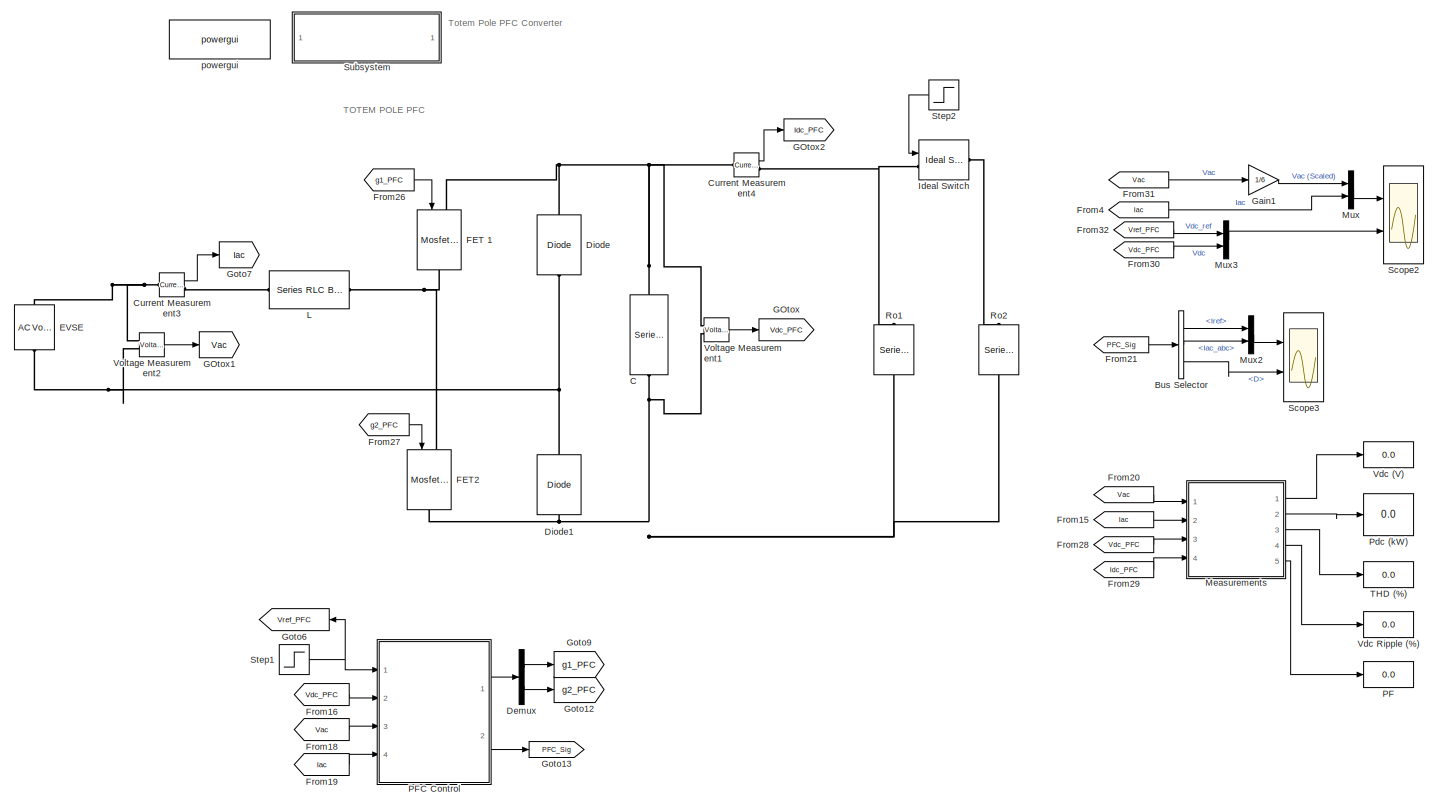
[diagram: root canvas - part 1/1, most of the canvas]
MODEL slx_6ab4b2e0a2a8
KIND model
CONFIG AbsTol = auto
CONFIG EnableMultiTasking = on
CONFIG FixedStep = Ts_Power
CONFIG MaxStep = 1e-7
CONFIG MinStep = auto
CONFIG PreLoadFcn = Totem_Pole_PFC_v1_data\n
CONFIG RelTol = 1e-4
CONFIG SampleTimeConstraint = Unconstrained
CONFIG SolverName = FixedStepDiscrete
CONFIG StartTime = 0.0
CONFIG StopTime = 0.6
BLOCK [BusSelector] Bus Selector
  OutputSignals = Iref,Iac_abc,D
  Ports = [1, 3]
BLOCK [Reference] C  REF=spsSeriesRLCBranchLib/Series RLC Branch
  NameLocation = left
  Ports = [0, 0, 0, 0, 0, 1, 1]
  SourceBlock = spsSeriesRLCBranchLib/Series RLC Branch
  SourceType = Series RLC Branch
BLOCK [Reference] Current Measurement3  REF=spsCurrentMeasurementLib/Current Measurement
  Ports = [0, 1, 0, 0, 0, 1, 1]
  SourceBlock = spsCurrentMeasurementLib/Current Measurement
  SourceType = Current Measurement
  UserDataPersistent = on
BLOCK [Reference] Current Measurement4  REF=spsCurrentMeasurementLib/Current Measurement
  Ports = [0, 1, 0, 0, 0, 1, 1]
  SourceBlock = spsCurrentMeasurementLib/Current Measurement
  SourceType = Current Measurement
  UserDataPersistent = on
BLOCK [Demux] Demux
  Outputs = 2
  Ports = [1, 2]
BLOCK [Reference] Diode  REF=spsDiodeLib/Diode
  NameLocation = right
  Ports = [0, 0, 0, 0, 0, 1, 1]
  SourceBlock = spsDiodeLib/Diode
  SourceType = Diode
BLOCK [Reference] Diode1  REF=spsDiodeLib/Diode
  NameLocation = right
  Ports = [0, 0, 0, 0, 0, 1, 1]
  SourceBlock = spsDiodeLib/Diode
  SourceType = Diode
BLOCK [Reference] EVSE  REF=spsACVoltageSourceLib/AC Voltage Source
  NameLocation = left
  Ports = [0, 0, 0, 0, 0, 1, 1]
  SourceBlock = spsACVoltageSourceLib/AC Voltage Source
  SourceType = AC Voltage Source
BLOCK [Reference] FET 1  REF=MyLibrary/Mosfet (custom)
  NameLocation = left
  Ports = [1, 0, 0, 0, 0, 1, 1]
  SourceBlock = MyLibrary/Mosfet (custom)
  SourceType = Custom FET
BLOCK [Reference] FET2  REF=MyLibrary/Mosfet (custom)
  NameLocation = left
  Ports = [1, 0, 0, 0, 0, 1, 1]
  SourceBlock = MyLibrary/Mosfet (custom)
  SourceType = Custom FET
BLOCK [From] From15
  GotoTag = Iac
BLOCK [From] From16
  GotoTag = Vdc_PFC
BLOCK [From] From18
  GotoTag = Vac
BLOCK [From] From19
  GotoTag = Iac
BLOCK [From] From20
  GotoTag = Vac
BLOCK [From] From21
  GotoTag = PFC_Sig
BLOCK [From] From26
  GotoTag = g1_PFC
BLOCK [From] From27
  GotoTag = g2_PFC
BLOCK [From] From28
  GotoTag = Vdc_PFC
BLOCK [From] From29
  GotoTag = Idc_PFC
BLOCK [From] From30
  GotoTag = Vdc_PFC
BLOCK [From] From31
  GotoTag = Vac
BLOCK [From] From32
  GotoTag = Vref_PFC
BLOCK [From] From4
  GotoTag = Iac
BLOCK [Goto] GOtox
  GotoTag = Vdc_PFC
BLOCK [Goto] GOtox1
  GotoTag = Vac
BLOCK [Goto] GOtox2
  GotoTag = Idc_PFC
BLOCK [Gain] Gain1
  Gain = 1/6
BLOCK [Goto] Goto12
  GotoTag = g2_PFC
BLOCK [Goto] Goto13
  GotoTag = PFC_Sig
BLOCK [Goto] Goto6
  GotoTag = Vref_PFC
BLOCK [Goto] Goto7
  GotoTag = Iac
BLOCK [Goto] Goto9
  GotoTag = g1_PFC
BLOCK [Reference] Ideal Switch  REF=spsIdealSwitchLib/Ideal Switch
  Ports = [1, 0, 0, 0, 0, 1, 1]
  SourceBlock = spsIdealSwitchLib/Ideal Switch
  SourceType = Ideal Switch
BLOCK [Reference] L  REF=spsSeriesRLCBranchLib/Series RLC Branch
  Ports = [0, 0, 0, 0, 0, 1, 1]
  SourceBlock = spsSeriesRLCBranchLib/Series RLC Branch
  SourceType = Series RLC Branch
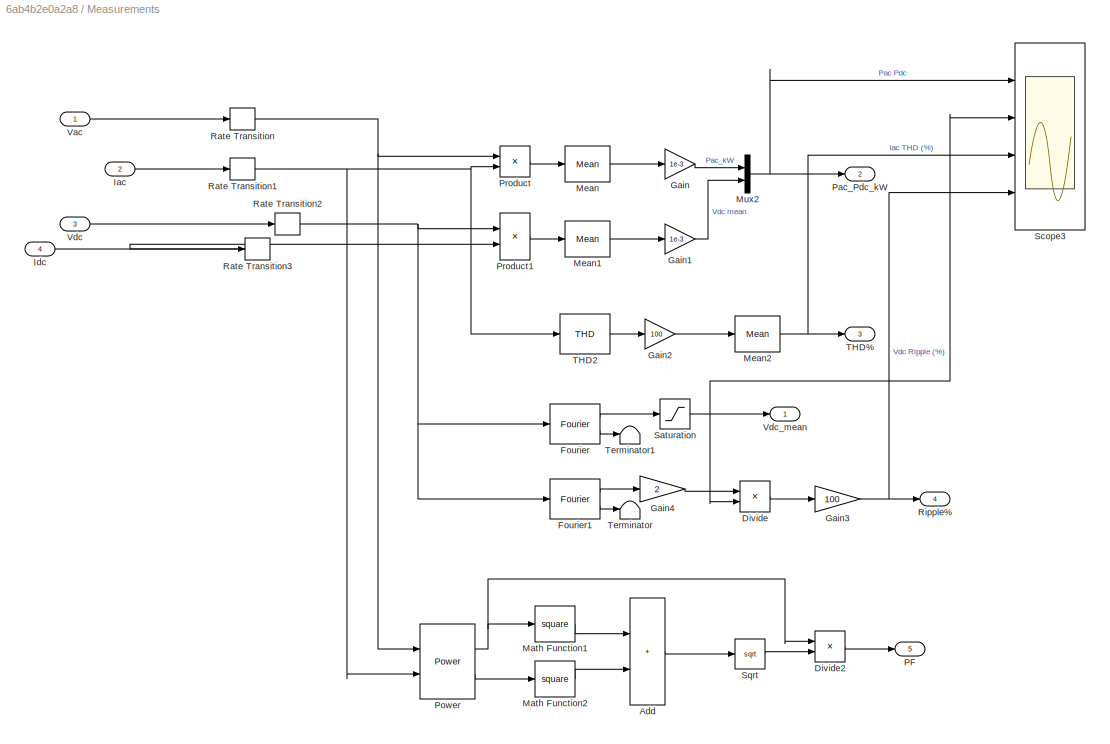
BLOCK [SubSystem] Measurements 
  Ports = [4, 5]
BLOCK [Sum] Measurements /Add
  IconShape = rectangular
  Ports = [2, 1]
BLOCK [Product] Measurements /Divide
  Inputs = */
  Ports = [2, 1]
BLOCK [Product] Measurements /Divide2
  Inputs = */
  Ports = [2, 1]
BLOCK [Reference] Measurements /Fourier  REF=spsFourierLib/Fourier
  Ports = [1, 2]
  SourceBlock = spsFourierLib/Fourier
  SourceType = Fourier
BLOCK [Reference] Measurements /Fourier1  REF=spsFourierLib/Fourier
  Ports = [1, 2]
  SourceBlock = spsFourierLib/Fourier
  SourceType = Fourier
BLOCK [Gain] Measurements /Gain
  Gain = 1e-3
BLOCK [Gain] Measurements /Gain1
  Gain = 1e-3
BLOCK [Gain] Measurements /Gain2
  Gain = 100
BLOCK [Gain] Measurements /Gain3
  Gain = 100
BLOCK [Gain] Measurements /Gain4
  Gain = 2
BLOCK [Inport] Measurements /Iac
  Port = 2
BLOCK [Inport] Measurements /Idc
  Port = 4
BLOCK [Math] Measurements /Math Function1
  Operator = square
  Ports = [1, 1]
BLOCK [Math] Measurements /Math Function2
  Operator = square
  Ports = [1, 1]
BLOCK [Reference] Measurements /Mean  REF=spsMeanLib/Mean
  Ports = [1, 1]
  SourceBlock = spsMeanLib/Mean
  SourceType = Mean
BLOCK [Reference] Measurements /Mean1  REF=spsMeanLib/Mean
  Ports = [1, 1]
  SourceBlock = spsMeanLib/Mean
  SourceType = Mean
BLOCK [Reference] Measurements /Mean2  REF=spsMeanLib/Mean
  Ports = [1, 1]
  SourceBlock = spsMeanLib/Mean
  SourceType = Mean
BLOCK [Mux] Measurements /Mux2
  DisplayOption = bar
  Inputs = 2
  Ports = [2, 1]
BLOCK [Outport] Measurements /PF
  Port = 5
BLOCK [Outport] Measurements /Pac_Pdc_kW
  Port = 2
BLOCK [Reference] Measurements /Power  REF=spsPowerLib/Power
  Ports = [2, 2]
  SourceBlock = spsPowerLib/Power
  SourceType = Power
BLOCK [Product] Measurements /Product
  Ports = [2, 1]
BLOCK [Product] Measurements /Product1
  Ports = [2, 1]
BLOCK [RateTransition] Measurements /Rate Transition
  OutPortSampleTime = Ts_Control
BLOCK [RateTransition] Measurements /Rate Transition1
  OutPortSampleTime = Ts_Control
BLOCK [RateTransition] Measurements /Rate Transition2
  OutPortSampleTime = Ts_Control
BLOCK [RateTransition] Measurements /Rate Transition3
  OutPortSampleTime = Ts_Control
BLOCK [Outport] Measurements /Ripple%
  Port = 4
BLOCK [Saturate] Measurements /Saturation
  LowerLimit = eps
  UpperLimit = inf
BLOCK [Scope] Measurements /Scope3
  Floating = off
  NumInputPorts = 4
  Ports = [4]
  ScopeSpecificationString = Simulink.scopes.TimeScopeBlockCfg('CurrentConfiguration', extmgr.ConfigurationSet(extmgr.Configuration('Core','General UI',true),extmgr.Configuration('Core','Source UI',true),extmgr.Configuration('Sources','WiredSimulink',true,'DataLoggingVariableName','ScopeData1'),extmgr.Configuration('Visuals','Time Domain',true,'SerializedDisplays',{struct('MinYLimReal','-1.32447','MaxYLimReal','11.92024','YLa...<+3480ch>
BLOCK [Sqrt] Measurements /Sqrt
BLOCK [Outport] Measurements /THD%
  Port = 3
BLOCK [Reference] Measurements /THD2  REF=spsTHDLib/THD
  Ports = [1, 1]
  SourceBlock = spsTHDLib/THD
  SourceType = THD
BLOCK [Terminator] Measurements /Terminator
BLOCK [Terminator] Measurements /Terminator1
BLOCK [Inport] Measurements /Vac
BLOCK [Inport] Measurements /Vdc
  Port = 3
BLOCK [Outport] Measurements /Vdc_mean
BLOCK [Mux] Mux
  DisplayOption = bar
  Inputs = 2
  Ports = [2, 1]
BLOCK [Mux] Mux2
  DisplayOption = bar
  Inputs = 2
  Ports = [2, 1]
BLOCK [Mux] Mux3
  DisplayOption = bar
  Inputs = 2
  Ports = [2, 1]
BLOCK [Display] PF
  Decimation = 100
  Format = bank
  Ports = [1]
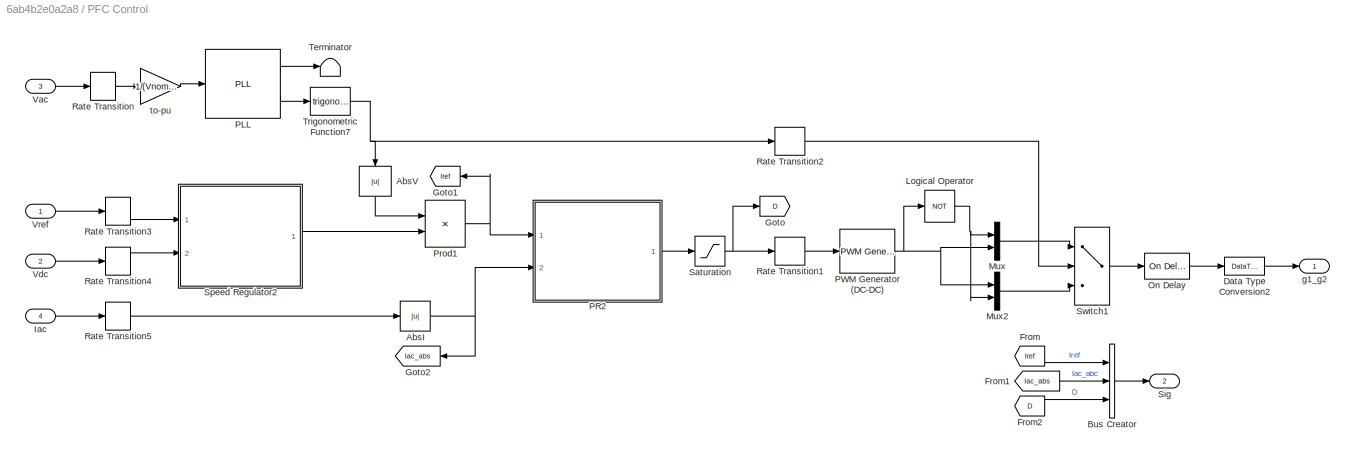
BLOCK [SubSystem] PFC Control
  Ports = [4, 2]
BLOCK [Abs] PFC Control/AbsI
  SaturateOnIntegerOverflow = off
BLOCK [Abs] PFC Control/AbsV
  NameLocation = right
  SaturateOnIntegerOverflow = off
BLOCK [BusCreator] PFC Control/Bus Creator
  DisplayOption = bar
  InheritFromInputs = on
  Inputs = 3
  Ports = [3, 1]
BLOCK [DataTypeConversion] PFC Control/Data Type Conversion2
  OutDataTypeStr = double
  RndMeth = Floor
  SaturateOnIntegerOverflow = off
BLOCK [From] PFC Control/From
  GotoTag = Iref
BLOCK [From] PFC Control/From1
  GotoTag = Iac_abs
BLOCK [From] PFC Control/From2
  GotoTag = D
BLOCK [Goto] PFC Control/Goto
  GotoTag = D
BLOCK [Goto] PFC Control/Goto1
  GotoTag = Iref
BLOCK [Goto] PFC Control/Goto2
  GotoTag = Iac_abs
BLOCK [Inport] PFC Control/Iac
  Port = 4
BLOCK [Logic] PFC Control/Logical Operator
  AllPortsSameDT = off
  Operator = NOT
  OutDataTypeStr = float('double')
  Ports = [1, 1]
BLOCK [Mux] PFC Control/Mux
  DisplayOption = bar
  Inputs = 2
  Ports = [2, 1]
BLOCK [Mux] PFC Control/Mux2
  DisplayOption = bar
  Inputs = 2
  Ports = [2, 1]
BLOCK [Reference] PFC Control/On Delay  REF=spsOnDelayLib/On Delay
  NameLocation = top
  Ports = [1, 1]
  SourceBlock = spsOnDelayLib/On Delay
  SourceType = On/Off Delay
BLOCK [Reference] PFC Control/PLL  REF=spsPLLLib/PLL
  Ports = [1, 2]
  SourceBlock = spsPLLLib/PLL
  SourceType = PLL
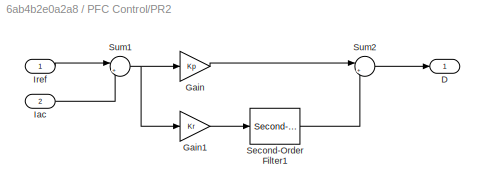
BLOCK [SubSystem] PFC Control/PR2
  Ports = [2, 1]
BLOCK [Outport] PFC Control/PR2/D
BLOCK [Gain] PFC Control/PR2/Gain
  Gain = Kp
BLOCK [Gain] PFC Control/PR2/Gain1
  Gain = Kr
BLOCK [Inport] PFC Control/PR2/Iac
  Port = 2
BLOCK [Inport] PFC Control/PR2/Iref
BLOCK [Reference] PFC Control/PR2/Second-Order Filter1  REF=spsSecondOrderFilterLib/Second-Order
Filter
  Ports = [1, 1]
  SourceBlock = spsSecondOrderFilterLib/Second-Order\nFilter
  SourceType = Second-Order Filter
BLOCK [Sum] PFC Control/PR2/Sum1
  Inputs = |+-
  Ports = [2, 1]
BLOCK [Sum] PFC Control/PR2/Sum2
  Inputs = |++
  Ports = [2, 1]
BLOCK [Reference] PFC Control/PWM Generator (DC-DC)  REF=spsPWMGeneratorDCDCLib/PWM Generator
(DC-DC)
  Ports = [1, 1]
  SourceBlock = spsPWMGeneratorDCDCLib/PWM Generator\n(DC-DC)
  SourceType = PWM Generator (DC-DC)
BLOCK [Product] PFC Control/Prod1
  Ports = [2, 1]
BLOCK [RateTransition] PFC Control/Rate Transition
  OutPortSampleTime = Ts_Control
BLOCK [RateTransition] PFC Control/Rate Transition1
  OutPortSampleTime = Ts_Power
BLOCK [RateTransition] PFC Control/Rate Transition2
  OutPortSampleTime = Ts_Power
BLOCK [RateTransition] PFC Control/Rate Transition3
  OutPortSampleTime = Ts_Control
BLOCK [RateTransition] PFC Control/Rate Transition4
  OutPortSampleTime = Ts_Control
BLOCK [RateTransition] PFC Control/Rate Transition5
  OutPortSampleTime = Ts_Control
BLOCK [Saturate] PFC Control/Saturation
  LowerLimit = 0
  UpperLimit = 1
BLOCK [Outport] PFC Control/Sig
  Port = 2
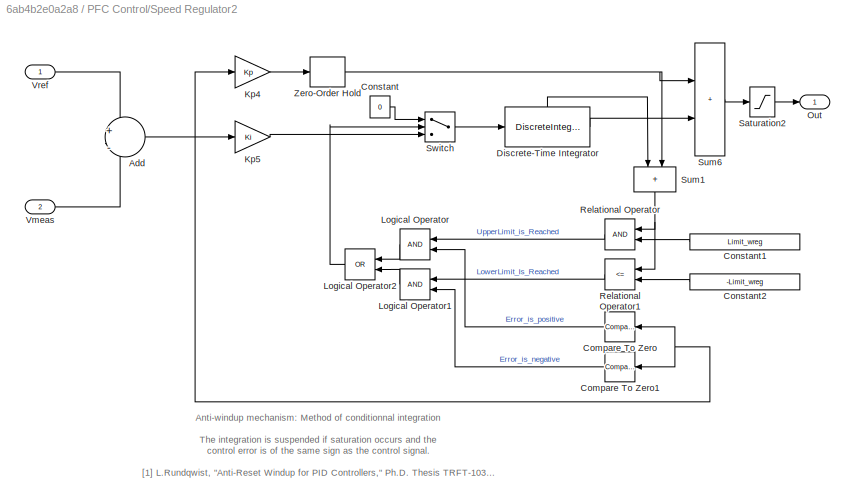
BLOCK [SubSystem] PFC Control/Speed Regulator2
  DialogController = POWERSYS.PowerSysDialog
  Ports = [2, 1]
BLOCK [Sum] PFC Control/Speed Regulator2/Add
  Inputs = +|-
  NameLocation = top
  Ports = [2, 1]
BLOCK [Reference] PFC Control/Speed Regulator2/Compare To Zero  REF=simulink/Logic and Bit
Operations/Compare
To Zero
  Ports = [1, 1]
  SourceBlock = simulink/Logic and Bit\nOperations/Compare\nTo Zero
  SourceType = Compare To Zero
BLOCK [Reference] PFC Control/Speed Regulator2/Compare To Zero1  REF=simulink/Logic and Bit
Operations/Compare
To Zero
  Ports = [1, 1]
  SourceBlock = simulink/Logic and Bit\nOperations/Compare\nTo Zero
  SourceType = Compare To Zero
BLOCK [Constant] PFC Control/Speed Regulator2/Constant
  Value = 0
BLOCK [Constant] PFC Control/Speed Regulator2/Constant1
  Value = Limit_wreg
BLOCK [Constant] PFC Control/Speed Regulator2/Constant2
  Value = -Limit_wreg
BLOCK [DiscreteIntegrator] PFC Control/Speed Regulator2/Discrete-Time Integrator
  ICPrevOutput = DiscIntNeverNeededParam
  ICPrevScaledInput = DiscIntNeverNeededParam
  InitialCondition = Init
  IntegratorMethod = Integration: Trapezoidal
  LimitOutput = on
  LowerSaturationLimit = -Limit_wreg
  Ports = [1, 1, 0, 0, 1]
  SampleTime = Ts
  ShowStatePort = on
  UpperSaturationLimit = Limit_wreg
BLOCK [Gain] PFC Control/Speed Regulator2/Kp4
  Gain = Kp
  OutDataTypeStr = Inherit: Same as input
  ParamDataTypeStr = Inherit: Same as input
  SampleTime = Ts
  SaturateOnIntegerOverflow = on
BLOCK [Gain] PFC Control/Speed Regulator2/Kp5
  Gain = Ki
  OutDataTypeStr = Inherit: Same as input
  ParamDataTypeStr = Inherit: Same as input
  SampleTime = Ts
  SaturateOnIntegerOverflow = on
BLOCK [Logic] PFC Control/Speed Regulator2/Logical Operator
  AllPortsSameDT = off
  OutDataTypeStr = boolean
  Ports = [2, 1]
BLOCK [Logic] PFC Control/Speed Regulator2/Logical Operator1
  AllPortsSameDT = off
  OutDataTypeStr = boolean
  Ports = [2, 1]
BLOCK [Logic] PFC Control/Speed Regulator2/Logical Operator2
  AllPortsSameDT = off
  Operator = OR
  OutDataTypeStr = boolean
  Ports = [2, 1]
BLOCK [Outport] PFC Control/Speed Regulator2/Out
  InitialOutput = 0
  SampleTime = Ts
  VectorParamsAs1DForOutWhenUnconnected = off
BLOCK [RelationalOperator] PFC Control/Speed Regulator2/Relational Operator
  InputSameDT = off
  OutDataTypeStr = boolean
  Ports = [2, 1]
BLOCK [RelationalOperator] PFC Control/Speed Regulator2/Relational Operator1
  InputSameDT = off
  Operator = <=
  OutDataTypeStr = boolean
  Ports = [2, 1]
BLOCK [Saturate] PFC Control/Speed Regulator2/Saturation2
  LowerLimit = -Limit_wreg
  NameLocation = top
  SampleTime = Ts
  UpperLimit = Limit_wreg
BLOCK [Sum] PFC Control/Speed Regulator2/Sum1
  IconShape = rectangular
  InputSameDT = on
  NameLocation = left
  OutDataTypeStr = Inherit: Same as first input
  Ports = [2, 1]
  SampleTime = Ts
  SaturateOnIntegerOverflow = on
BLOCK [Sum] PFC Control/Speed Regulator2/Sum6
  IconShape = rectangular
  InputSameDT = on
  OutDataTypeStr = Inherit: Same as first input
  Ports = [2, 1]
  SampleTime = Ts
  SaturateOnIntegerOverflow = on
BLOCK [Switch] PFC Control/Speed Regulator2/Switch
  Criteria = u2 > Threshold
  InputSameDT = off
  SaturateOnIntegerOverflow = off
BLOCK [Inport] PFC Control/Speed Regulator2/Vmeas
  Port = 2
  PortDimensions = 1
BLOCK [Inport] PFC Control/Speed Regulator2/Vref
  PortDimensions = 1
BLOCK [ZeroOrderHold] PFC Control/Speed Regulator2/Zero-Order Hold
  SampleTime = Ts
BLOCK [Switch] PFC Control/Switch1
  InputSameDT = off
  SaturateOnIntegerOverflow = off
BLOCK [Terminator] PFC Control/Terminator
BLOCK [Trigonometry] PFC Control/Trigonometric Function7
  NameLocation = top
  Ports = [1, 1]
BLOCK [Inport] PFC Control/Vac
  Port = 3
BLOCK [Inport] PFC Control/Vdc
  Port = 2
BLOCK [Inport] PFC Control/Vref
BLOCK [Outport] PFC Control/g1_g2
  PortDimensions = 2
BLOCK [Gain] PFC Control/to-pu
  Gain = 1/(Vnom_ac*sqrt(2))
BLOCK [Display] Pdc (kW) 
  Decimation = 100
  Format = bank
  Ports = [1]
BLOCK [Reference] Ro1  REF=spsSeriesRLCBranchLib/Series RLC Branch
  NameLocation = right
  Ports = [0, 0, 0, 0, 0, 1, 1]
  SourceBlock = spsSeriesRLCBranchLib/Series RLC Branch
  SourceType = Series RLC Branch
BLOCK [Reference] Ro2  REF=spsSeriesRLCBranchLib/Series RLC Branch
  NameLocation = right
  Ports = [0, 0, 0, 0, 0, 1, 1]
  SourceBlock = spsSeriesRLCBranchLib/Series RLC Branch
  SourceType = Series RLC Branch
BLOCK [Scope] Scope2
  Floating = off
  NumInputPorts = 2
  Ports = [2]
  ScopeSpecificationString = Simulink.scopes.TimeScopeBlockCfg('CurrentConfiguration', extmgr.ConfigurationSet(extmgr.Configuration('Core','General UI',true),extmgr.Configuration('Core','Source UI',true),extmgr.Configuration('Sources','WiredSimulink',true,'DataLoggingVariableName','ScopeData1'),extmgr.Configuration('Visuals','Time Domain',true,'SerializedDisplays',{struct('MinYLimReal','-70.71068','MaxYLimReal','70.71068','YL...<+2110ch>
BLOCK [Scope] Scope3
  Floating = off
  NumInputPorts = 2
  Ports = [2]
  ScopeSpecificationString = Simulink.scopes.TimeScopeBlockCfg('CurrentConfiguration', extmgr.ConfigurationSet(extmgr.Configuration('Core','General UI',true),extmgr.Configuration('Core','Source UI',true),extmgr.Configuration('Sources','WiredSimulink',true,'DataLoggingVariableName','ScopeData2'),extmgr.Configuration('Visuals','Time Domain',true,'SerializedDisplays',{struct('MinYLimReal','-9.06391','MaxYLimReal','81.57518','YLa...<+2057ch>
BLOCK [Step] Step1
  After = 400
  Before = 350
  SampleTime = Ts_Power
  Time = 0.2
BLOCK [Step] Step2
  SampleTime = Ts_Power
  Time = 0.4
BLOCK [SubSystem] Subsystem
  OpenFcn = edit('Totem_Pole_PFC_v1_data');
  Ports = []
BLOCK [Display] THD (%) 
  Decimation = 100
  Format = bank
  Ports = [1]
BLOCK [Display] Vdc (V) 
  Decimation = 100
  Format = bank
  Ports = [1]
BLOCK [Display] Vdc Ripple (%)
  Decimation = 100
  Format = bank
  Ports = [1]
BLOCK [Reference] Voltage Measurement1  REF=spsVoltageMeasurementLib/Voltage Measurement
  Ports = [0, 1, 0, 0, 0, 2]
  SourceBlock = spsVoltageMeasurementLib/Voltage Measurement
  SourceType = Voltage Measurement
  UserDataPersistent = on
BLOCK [Reference] Voltage Measurement2  REF=spsVoltageMeasurementLib/Voltage Measurement
  Ports = [0, 1, 0, 0, 0, 2]
  SourceBlock = spsVoltageMeasurementLib/Voltage Measurement
  SourceType = Voltage Measurement
  UserDataPersistent = on
BLOCK [Reference] powergui  REF=spspowerguiLib/powergui
  Ports = []
  Priority = 1
  SourceBlock = spspowerguiLib/powergui
  SourceType = PSB option menu block
ANNOTATION (root): TOTEM POLE PFC
ANNOTATION (root): Totem Pole PFC Converter
ANNOTATION PFC Control/Speed Regulator2: Anti-windup mechanism: Method of conditionnal integration The integration is suspended if saturation occurs and the control error is of the same sign as the control signal. [1] L.Rundqwist, "Anti-Reset Windup for PID Controllers," Ph.D. Thesis TRFT-1033, Departement of Automatic Control, Lund Institute of Technology, Lund, Sweeden, 1991.
LINE Bus Selector:1 -> Mux2:1
LINE Bus Selector:2 -> Mux2:2
LINE Bus Selector:3 -> Scope3:2
LINE Current Measurement3:1 -> Goto7:1
LINE Current Measurement4:1 -> GOtox2:1
LINE Demux:1 -> Goto9:1
LINE Demux:2 -> Goto12:1
LINE From15:1 -> Measurements :2
LINE From16:1 -> PFC Control:2
LINE From18:1 -> PFC Control:3
LINE From19:1 -> PFC Control:4
LINE From20:1 -> Measurements :1
LINE From21:1 -> Bus Selector:1
LINE From26:1 -> FET 1:1
LINE From27:1 -> FET2:1
LINE From28:1 -> Measurements :3
LINE From29:1 -> Measurements :4
LINE From30:1 -> Mux3:2
LINE From31:1 -> Gain1:1
LINE From32:1 -> Mux3:1
LINE From4:1 -> Mux:2
LINE Gain1:1 -> Mux:1
LINE Measurements /Add:1 -> Measurements /Sqrt:1
LINE Measurements /Divide2:1 -> Measurements /PF:1
LINE Measurements /Divide:1 -> Measurements /Gain3:1
LINE Measurements /Fourier1:1 -> Measurements /Gain4:1
LINE Measurements /Fourier1:2 -> Measurements /Terminator:1
LINE Measurements /Fourier:1 -> Measurements /Saturation:1
LINE Measurements /Fourier:2 -> Measurements /Terminator1:1
LINE Measurements /Gain1:1 -> Measurements /Mux2:2
LINE Measurements /Gain2:1 -> Measurements /Mean2:1
NET Measurements /Gain3:1 -> Measurements /Ripple%:1, Measurements /Scope3:4
LINE Measurements /Gain4:1 -> Measurements /Divide:1
LINE Measurements /Gain:1 -> Measurements /Mux2:1
LINE Measurements /Iac:1 -> Measurements /Rate Transition1:1
LINE Measurements /Idc:1 -> Measurements /Rate Transition3:1
LINE Measurements /Math Function1:1 -> Measurements /Add:1
LINE Measurements /Math Function2:1 -> Measurements /Add:2
LINE Measurements /Mean1:1 -> Measurements /Gain1:1
NET Measurements /Mean2:1 -> Measurements /Scope3:3, Measurements /THD%:1
LINE Measurements /Mean:1 -> Measurements /Gain:1
NET Measurements /Mux2:1 -> Measurements /Pac_Pdc_kW:1, Measurements /Scope3:1
NET Measurements /Power:1 -> Measurements /Divide2:1, Measurements /Math Function1:1
LINE Measurements /Power:2 -> Measurements /Math Function2:1
LINE Measurements /Product1:1 -> Measurements /Mean1:1
LINE Measurements /Product:1 -> Measurements /Mean:1
NET Measurements /Rate Transition1:1 -> Measurements /Power:2, Measurements /Product:2, Measurements /THD2:1
NET Measurements /Rate Transition2:1 -> Measurements /Fourier1:1, Measurements /Fourier:1, Measurements /Product1:1
LINE Measurements /Rate Transition3:1 -> Measurements /Product1:2
NET Measurements /Rate Transition:1 -> Measurements /Power:1, Measurements /Product:1
NET Measurements /Saturation:1 -> Measurements /Divide:2, Measurements /Scope3:2, Measurements /Vdc_mean:1
LINE Measurements /Sqrt:1 -> Measurements /Divide2:2
LINE Measurements /THD2:1 -> Measurements /Gain2:1
LINE Measurements /Vac:1 -> Measurements /Rate Transition:1
LINE Measurements /Vdc:1 -> Measurements /Rate Transition2:1
LINE Measurements :1 -> Vdc (V) :1
LINE Measurements :2 -> Pdc (kW) :1
LINE Measurements :3 -> THD (%) :1
LINE Measurements :4 -> Vdc Ripple (%):1
LINE Measurements :5 -> PF:1
LINE Mux2:1 -> Scope3:1
LINE Mux3:1 -> Scope2:2
LINE Mux:1 -> Scope2:1
NET PFC Control/AbsI:1 -> PFC Control/Goto2:1, PFC Control/PR2:2
LINE PFC Control/AbsV:1 -> PFC Control/Prod1:1
LINE PFC Control/Bus Creator:1 -> PFC Control/Sig:1
LINE PFC Control/Data Type Conversion2:1 -> PFC Control/g1_g2:1
LINE PFC Control/From1:1 -> PFC Control/Bus Creator:2
LINE PFC Control/From2:1 -> PFC Control/Bus Creator:3
LINE PFC Control/From:1 -> PFC Control/Bus Creator:1
LINE PFC Control/Iac:1 -> PFC Control/Rate Transition5:1
NET PFC Control/Logical Operator:1 -> PFC Control/Mux2:2, PFC Control/Mux:1
LINE PFC Control/Mux2:1 -> PFC Control/Switch1:3
LINE PFC Control/Mux:1 -> PFC Control/Switch1:1
LINE PFC Control/On Delay:1 -> PFC Control/Data Type Conversion2:1
LINE PFC Control/PLL:1 -> PFC Control/Terminator:1
LINE PFC Control/PLL:2 -> PFC Control/Trigonometric Function7:1
LINE PFC Control/PR2/Gain1:1 -> PFC Control/PR2/Second-Order Filter1:1
LINE PFC Control/PR2/Gain:1 -> PFC Control/PR2/Sum2:1
LINE PFC Control/PR2/Iac:1 -> PFC Control/PR2/Sum1:2
LINE PFC Control/PR2/Iref:1 -> PFC Control/PR2/Sum1:1
LINE PFC Control/PR2/Second-Order Filter1:1 -> PFC Control/PR2/Sum2:2
NET PFC Control/PR2/Sum1:1 -> PFC Control/PR2/Gain1:1, PFC Control/PR2/Gain:1
LINE PFC Control/PR2/Sum2:1 -> PFC Control/PR2/D:1
LINE PFC Control/PR2:1 -> PFC Control/Saturation:1
NET PFC Control/PWM Generator (DC-DC):1 -> PFC Control/Logical Operator:1, PFC Control/Mux2:1, PFC Control/Mux:2
NET PFC Control/Prod1:1 -> PFC Control/Goto1:1, PFC Control/PR2:1
LINE PFC Control/Rate Transition1:1 -> PFC Control/PWM Generator (DC-DC):1
LINE PFC Control/Rate Transition2:1 -> PFC Control/Switch1:2
LINE PFC Control/Rate Transition3:1 -> PFC Control/Speed Regulator2:1
LINE PFC Control/Rate Transition4:1 -> PFC Control/Speed Regulator2:2
LINE PFC Control/Rate Transition5:1 -> PFC Control/AbsI:1
LINE PFC Control/Rate Transition:1 -> PFC Control/to-pu:1
NET PFC Control/Saturation:1 -> PFC Control/Goto:1, PFC Control/Rate Transition1:1
LINE PFC Control/Speed Regulator2:1 -> PFC Control/Prod1:2
LINE PFC Control/Switch1:1 -> PFC Control/On Delay:1
NET PFC Control/Trigonometric Function7:1 -> PFC Control/AbsV:1, PFC Control/Rate Transition2:1
LINE PFC Control/Vac:1 -> PFC Control/Rate Transition:1
LINE PFC Control/Vdc:1 -> PFC Control/Rate Transition4:1
LINE PFC Control/Vref:1 -> PFC Control/Rate Transition3:1
LINE PFC Control/to-pu:1 -> PFC Control/PLL:1
LINE PFC Control:1 -> Demux:1
LINE PFC Control:2 -> Goto13:1
NET Step1:1 -> Goto6:1, PFC Control:1
LINE Step2:1 -> Ideal Switch:1
LINE Voltage Measurement1:1 -> GOtox:1
LINE Voltage Measurement2:1 -> GOtox1:1
PNET net1: C:LConn1 -- Current Measurement4:LConn1 -- Diode:RConn1 -- FET 1:LConn1 -- Voltage Measurement1:LConn1
PNET net2: C:RConn1 -- Diode1:LConn1 -- FET2:RConn1 -- Ro1:RConn1 -- Ro2:RConn1 -- Voltage Measurement1:LConn2
PNET net3: Current Measurement3:LConn1 -- EVSE:RConn1 -- Voltage Measurement2:LConn1
PLINE Current Measurement3:RConn1 -- L:LConn1
PNET net4: Current Measurement4:RConn1 -- Ideal Switch:LConn1 -- Ro1:LConn1
PNET net5: Diode1:RConn1 -- Diode:LConn1 -- EVSE:LConn1 -- Voltage Measurement2:LConn2
PNET net6: FET 1:RConn1 -- FET2:LConn1 -- L:RConn1
PLINE Ideal Switch:RConn1 -- Ro2:LConn1
note: NET lines group one-source signal fan-out (src -> all destinations, sorted); 1:1 wires keep LINE; PNET lines group multi-terminal physical nets as a canonical sorted terminal list (undirected conserving connections); 2-terminal nets keep the pairwise PLINE form
